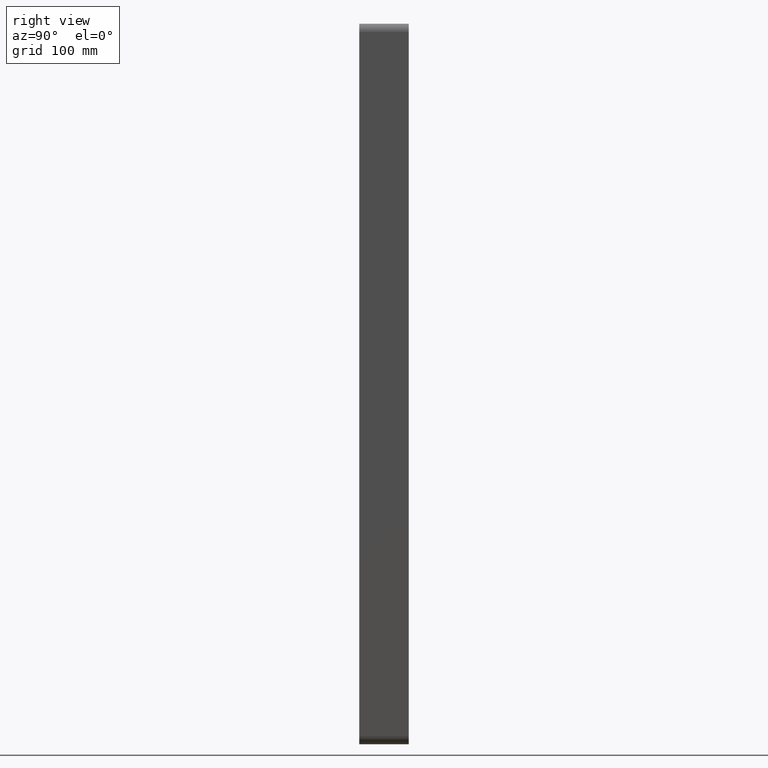
[diagram: clean part render]
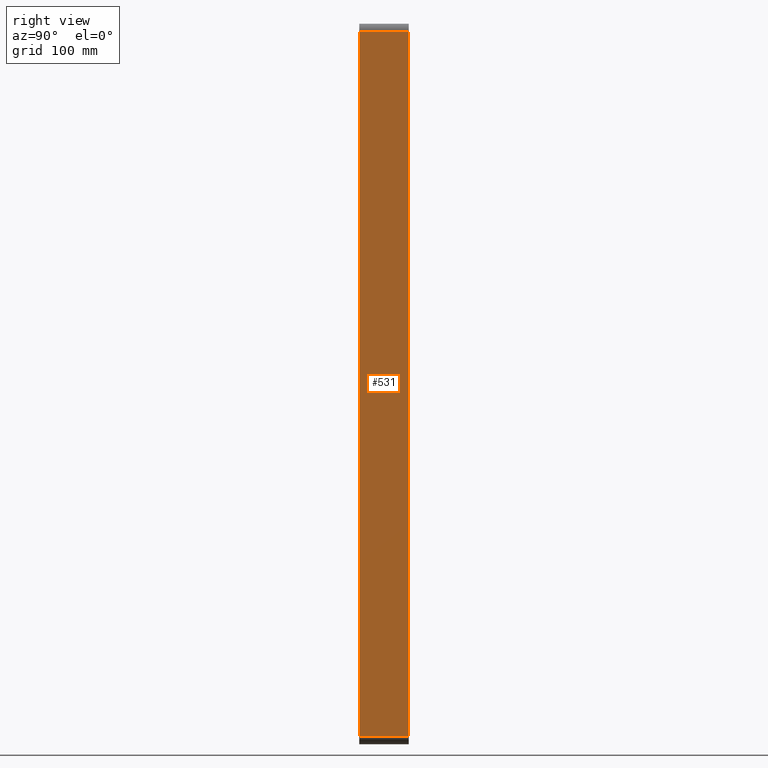
[diagram: same view with one face highlighted and labeled with its STEP entity id]
A machine part, right view. The second image highlights one B-rep face of the part: STEP entity #531.
In plain terms, the highlighted planar face has unit normal (1, 0, 0).
Its self-contained STEP definition (entity closure, byte-faithful):
#372=CARTESIAN_POINT('',(70.25,57.0,-426.99999999999994));
#373=VERTEX_POINT('',#372);
#381=CARTESIAN_POINT('',(70.25,-3.0,-426.99999999999994));
#382=VERTEX_POINT('',#381);
#383=CARTESIAN_POINT('',(70.25,57.0,-426.99999999999994));
#384=DIRECTION('',(0.0,-1.0,0.0));
#385=VECTOR('',#384,60.0);
#386=LINE('',#383,#385);
#387=EDGE_CURVE('',#373,#382,#386,.T.);
#413=CARTESIAN_POINT('',(70.25,-3.0,427.00000000000011));
#414=VERTEX_POINT('',#413);
#415=CARTESIAN_POINT('',(70.25,-3.0,-426.99999999999989));
#416=DIRECTION('',(0.0,0.0,1.0));
#417=VECTOR('',#416,854.0);
#418=LINE('',#415,#417);
#419=EDGE_CURVE('',#382,#414,#418,.T.);
#508=CARTESIAN_POINT('',(70.25,0.0,437.00000000000011));
#509=DIRECTION('',(1.0,0.0,0.0));
#510=DIRECTION('',(0.0,0.0,-1.0));
#511=AXIS2_PLACEMENT_3D('',#508,#509,#510);
#512=PLANE('',#511);
#513=ORIENTED_EDGE('',*,*,#387,.F.);
#514=CARTESIAN_POINT('',(70.25,57.0,427.00000000000011));
#515=VERTEX_POINT('',#514);
#516=CARTESIAN_POINT('',(70.25,57.0,427.00000000000011));
#517=DIRECTION('',(0.0,0.0,-1.0));
#518=VECTOR('',#517,854.0);
#519=LINE('',#516,#518);
#520=EDGE_CURVE('',#515,#373,#519,.T.);
#521=ORIENTED_EDGE('',*,*,#520,.F.);
#522=CARTESIAN_POINT('',(70.25,-3.0,427.00000000000011));
#523=DIRECTION('',(0.0,1.0,0.0));
#524=VECTOR('',#523,60.0);
#525=LINE('',#522,#524);
#526=EDGE_CURVE('',#414,#515,#525,.T.);
#527=ORIENTED_EDGE('',*,*,#526,.F.);
#528=ORIENTED_EDGE('',*,*,#419,.F.);
#529=EDGE_LOOP('',(#513,#521,#527,#528));
#530=FACE_OUTER_BOUND('',#529,.T.);
#531=ADVANCED_FACE('',(#530),#512,.T.);